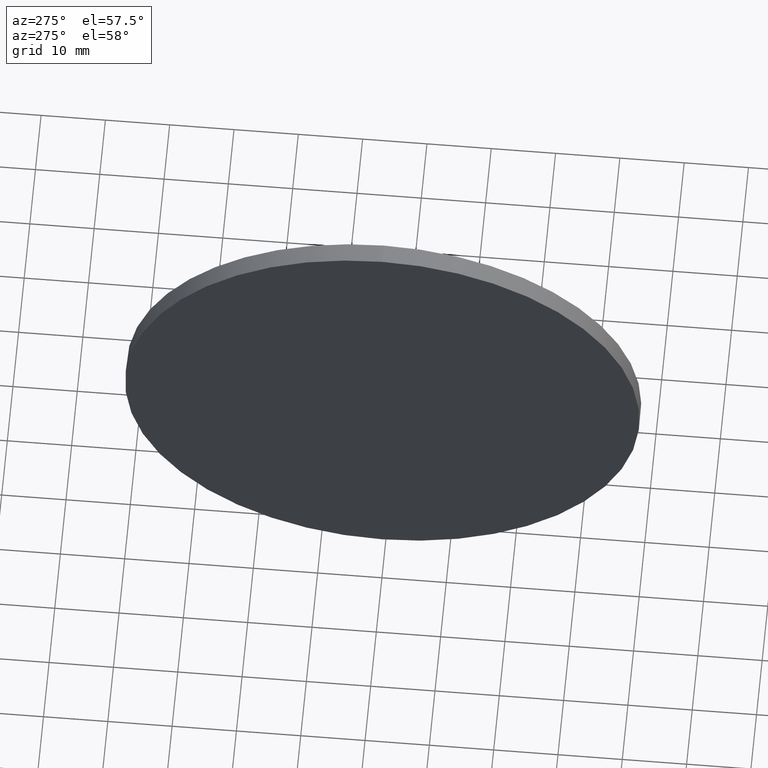
[diagram: clean part render]
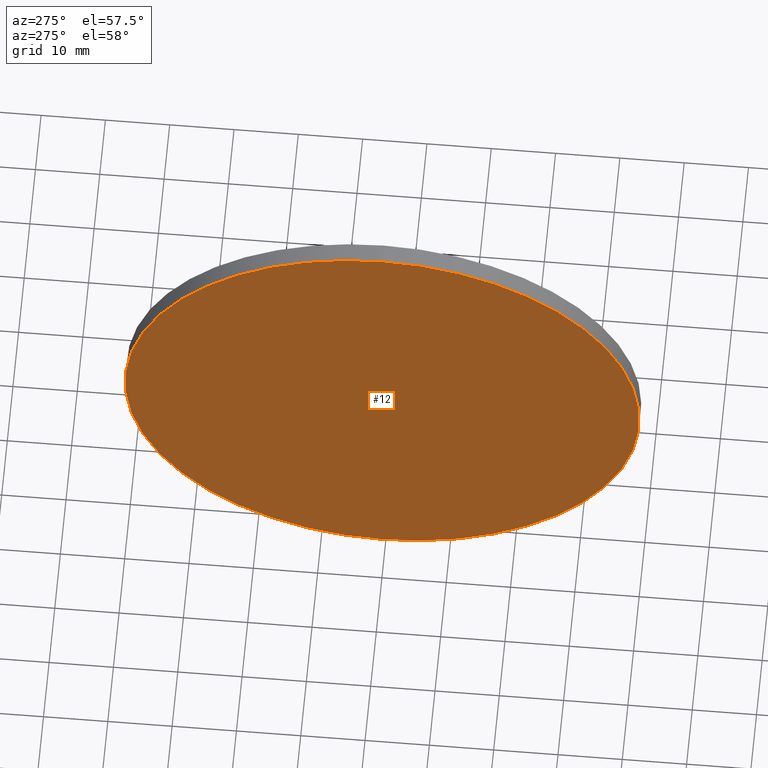
[diagram: same view with one face highlighted and labeled with its STEP entity id]
A machine part, auxiliary view. The second image highlights one B-rep face of the part: STEP entity #12.
In plain terms, the highlighted planar face has unit normal (1, 0, 0).
Its self-contained STEP definition (entity closure, byte-faithful):
#12 = ADVANCED_FACE ( 'NONE', ( #25 ), #13, .F. ) ;
#13 = PLANE ( 'NONE',  #116 ) ;
#25 = FACE_OUTER_BOUND ( 'NONE', #181, .T. ) ;
#31 = EDGE_CURVE ( 'NONE', #178, #128, #115, .T. ) ;
#36 = ORIENTED_EDGE ( 'NONE', *, *, #164, .T. ) ;
#40 = ORIENTED_EDGE ( 'NONE', *, *, #31, .T. ) ;
#51 = DIRECTION ( 'NONE',  ( -1.000000000000000000, -0.0000000000000000000, -0.0000000000000000000 ) ) ;
#54 = DIRECTION ( 'NONE',  ( 0.0000000000000000000, 0.0000000000000000000, -1.000000000000000000 ) ) ;
#56 = CIRCLE ( 'NONE', #158, 40.00000000000000700 ) ;
#76 = CARTESIAN_POINT ( 'NONE',  ( 225.9490942240209100, 130.4671098528244200, 0.0000000000000000000 ) ) ;
#79 = DIRECTION ( 'NONE',  ( 0.0000000000000000000, 0.0000000000000000000, 1.000000000000000000 ) ) ;
#94 = CARTESIAN_POINT ( 'NONE',  ( 225.9490942240209100, 130.4671098528244200, 0.0000000000000000000 ) ) ;
#102 = DIRECTION ( 'NONE',  ( 1.000000000000000000, 0.0000000000000000000, 0.0000000000000000000 ) ) ;
#114 = AXIS2_PLACEMENT_3D ( 'NONE', #94, #176, #79 ) ;
#115 = CIRCLE ( 'NONE', #114, 40.00000000000000700 ) ;
#116 = AXIS2_PLACEMENT_3D ( 'NONE', #76, #102, #54 ) ;
#128 = VERTEX_POINT ( 'NONE', #180 ) ;
#153 = DIRECTION ( 'NONE',  ( 0.0000000000000000000, 0.0000000000000000000, 1.000000000000000000 ) ) ;
#158 = AXIS2_PLACEMENT_3D ( 'NONE', #169, #51, #153 ) ;
#164 = EDGE_CURVE ( 'NONE', #128, #178, #56, .T. ) ;
#169 = CARTESIAN_POINT ( 'NONE',  ( 225.9490942240209100, 130.4671098528244200, 0.0000000000000000000 ) ) ;
#176 = DIRECTION ( 'NONE',  ( -1.000000000000000000, -0.0000000000000000000, -0.0000000000000000000 ) ) ;
#178 = VERTEX_POINT ( 'NONE', #182 ) ;
#180 = CARTESIAN_POINT ( 'NONE',  ( 225.9490942240209100, 130.4671098528244200, 40.00000000000000700 ) ) ;
#181 = EDGE_LOOP ( 'NONE', ( #36, #40 ) ) ;
#182 = CARTESIAN_POINT ( 'NONE',  ( 225.9490942240209100, 130.4671098528244200, -40.00000000000000700 ) ) ;